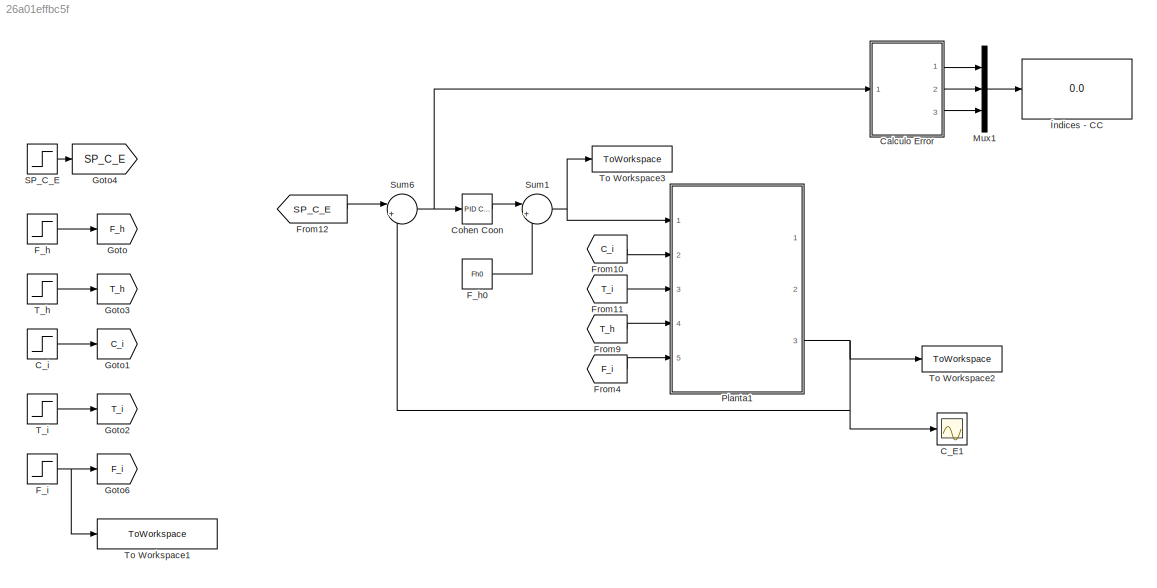
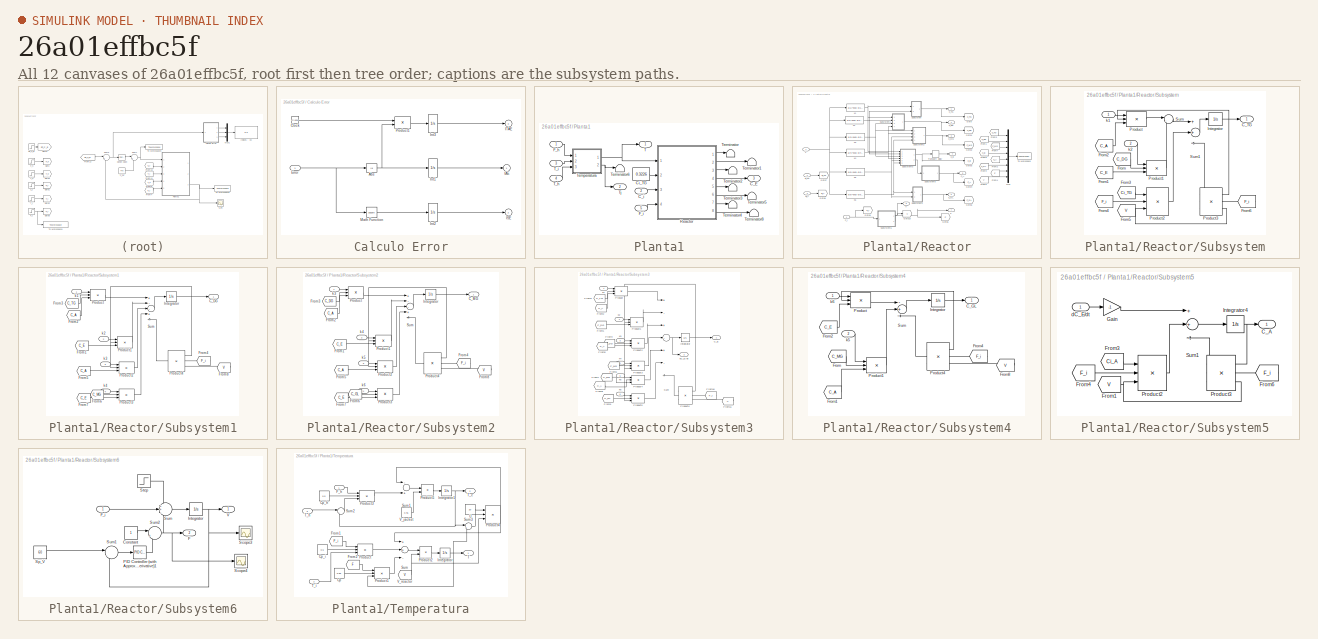
[diagram: thumbnail index - all 12 canvases of the model, root first then tree order]
MODEL slx_26a01effbc5f
KIND model
BLOCK [Scope] C_E1
  Floating = off
  NumInputPorts = 1
  Ports = [1]
  SaveName = ScopeData2
  ShowLegends = off
  ZoomMode = xonly
BLOCK [Step] C_i
  After = Ci0
  Before = Ci0
  SampleTime = 1
  Time = 50
BLOCK [SubSystem] Calculo Error
  Ports = [1, 3]
  RequestExecContextInheritance = off
BLOCK [Abs] Calculo Error/Abs
  ZeroCross = off
BLOCK [Clock] Calculo Error/Clock
BLOCK [Inport] Calculo Error/Error
  IconDisplay = Port number
BLOCK [Outport] Calculo Error/IAE
  IconDisplay = Port number
  InitialOutput = 0
BLOCK [Outport] Calculo Error/ISE
  IconDisplay = Port number
  InitialOutput = 0
  Port = 2
BLOCK [Outport] Calculo Error/ITAE
  IconDisplay = Port number
  InitialOutput = 0
  Port = 3
BLOCK [Integrator] Calculo Error/Int1
  Ports = [1, 1]
BLOCK [Integrator] Calculo Error/Int2
  Ports = [1, 1]
BLOCK [Integrator] Calculo Error/Int3
  Ports = [1, 1]
BLOCK [Math] Calculo Error/Math Function
  Operator = square
  Ports = [1, 1]
BLOCK [Product] Calculo Error/Product1
  Ports = [2, 1]
  RndMeth = Floor
BLOCK [Reference] Cohen Coon  REF=simulink_need_slupdate/PID Controller
  D = Td_CC
  I = Ti_CC
  P = Kc_CC
  Ports = [1, 1]
  SourceBlock = simulink_need_slupdate/PID Controller
  SourceType = PID Controller
BLOCK [Step] F_h
  After = Fh0
  Before = Fh0
  SampleTime = 1
  Time = 50
BLOCK [Constant] F_h0
  Value = Fh0
BLOCK [Step] F_i
  After = Fi0*1.01
  Before = Fi0
  SampleTime = 1
  Time = 50
BLOCK [From] From10
  GotoTag = C_i
BLOCK [From] From11
  GotoTag = T_i
BLOCK [From] From12
  GotoTag = SP_C_E
BLOCK [From] From4
  GotoTag = F_i
BLOCK [From] From9
  GotoTag = T_h
BLOCK [Goto] Goto
  GotoTag = F_h
BLOCK [Goto] Goto1
  GotoTag = C_i
BLOCK [Goto] Goto2
  GotoTag = T_i
BLOCK [Goto] Goto3
  GotoTag = T_h
BLOCK [Goto] Goto4
  GotoTag = SP_C_E
BLOCK [Goto] Goto6
  GotoTag = F_i
BLOCK [Mux] Mux1
  Inputs = 3
  Ports = [3, 1]
BLOCK [SubSystem] Planta1
  Ports = [5, 3]
  RequestExecContextInheritance = off
BLOCK [Outport] Planta1/C_E
  IconDisplay = Port number
  Port = 3
BLOCK [Inport] Planta1/C_i
  IconDisplay = Port number
  Port = 2
BLOCK [Constant] Planta1/Ci_TG
  Value = 0.3226
BLOCK [Inport] Planta1/F_h
  IconDisplay = Port number
BLOCK [Inport] Planta1/F_i
  IconDisplay = Port number
  Port = 5
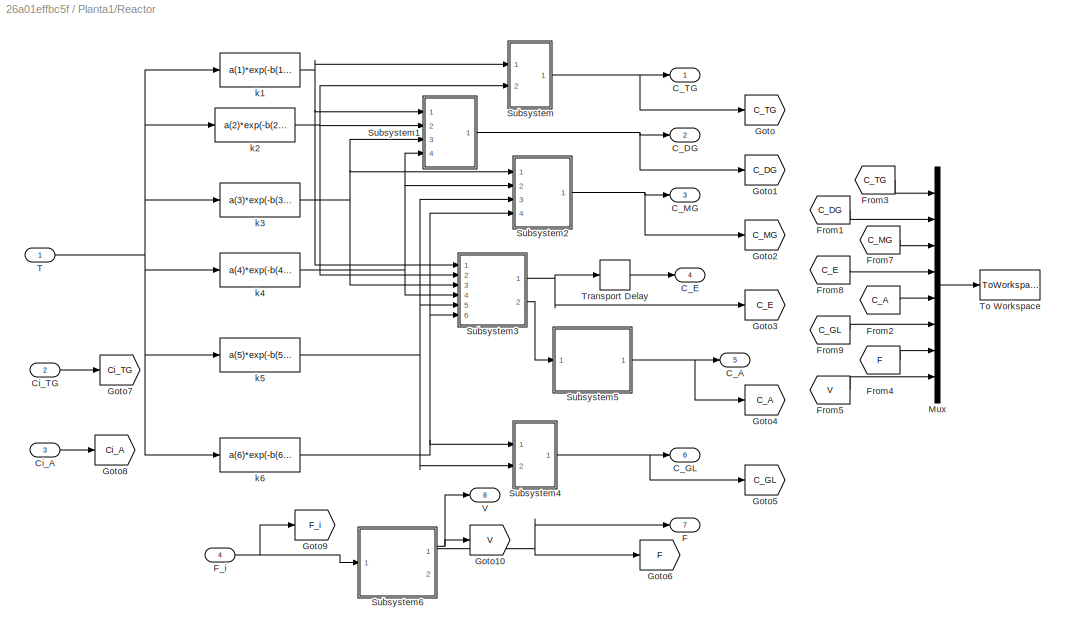
BLOCK [SubSystem] Planta1/Reactor
  Ports = [4, 8]
  RequestExecContextInheritance = off
BLOCK [Outport] Planta1/Reactor/C_A
  IconDisplay = Port number
  Port = 5
BLOCK [Outport] Planta1/Reactor/C_DG
  IconDisplay = Port number
  Port = 2
BLOCK [Outport] Planta1/Reactor/C_E
  IconDisplay = Port number
  Port = 4
BLOCK [Outport] Planta1/Reactor/C_GL
  IconDisplay = Port number
  Port = 6
BLOCK [Outport] Planta1/Reactor/C_MG
  IconDisplay = Port number
  Port = 3
BLOCK [Outport] Planta1/Reactor/C_TG
  IconDisplay = Port number
BLOCK [Inport] Planta1/Reactor/Ci_A
  IconDisplay = Port number
  Port = 3
BLOCK [Inport] Planta1/Reactor/Ci_TG
  IconDisplay = Port number
  Port = 2
BLOCK [Outport] Planta1/Reactor/F
  IconDisplay = Port number
  Port = 7
BLOCK [Inport] Planta1/Reactor/F_i
  IconDisplay = Port number
  Port = 4
BLOCK [From] Planta1/Reactor/From1
  CloseFcn = tagdialog Close
  GotoTag = C_DG
  TagVisibility = global
BLOCK [From] Planta1/Reactor/From2
  CloseFcn = tagdialog Close
  GotoTag = C_A
  TagVisibility = global
BLOCK [From] Planta1/Reactor/From3
  CloseFcn = tagdialog Close
  GotoTag = C_TG
  TagVisibility = global
BLOCK [From] Planta1/Reactor/From4
  CloseFcn = tagdialog Close
  GotoTag = F
  TagVisibility = global
BLOCK [From] Planta1/Reactor/From5
  CloseFcn = tagdialog Close
  GotoTag = V
  TagVisibility = global
BLOCK [From] Planta1/Reactor/From7
  CloseFcn = tagdialog Close
  GotoTag = C_MG
  TagVisibility = global
BLOCK [From] Planta1/Reactor/From8
  CloseFcn = tagdialog Close
  GotoTag = C_E
  TagVisibility = global
BLOCK [From] Planta1/Reactor/From9
  CloseFcn = tagdialog Close
  GotoTag = C_GL
  TagVisibility = global
BLOCK [Goto] Planta1/Reactor/Goto
  GotoTag = C_TG
  TagVisibility = global
BLOCK [Goto] Planta1/Reactor/Goto1
  GotoTag = C_DG
  TagVisibility = global
BLOCK [Goto] Planta1/Reactor/Goto10
  GotoTag = V
  TagVisibility = global
BLOCK [Goto] Planta1/Reactor/Goto2
  GotoTag = C_MG
  TagVisibility = global
BLOCK [Goto] Planta1/Reactor/Goto3
  GotoTag = C_E
  TagVisibility = global
BLOCK [Goto] Planta1/Reactor/Goto4
  GotoTag = C_A
  TagVisibility = global
BLOCK [Goto] Planta1/Reactor/Goto5
  GotoTag = C_GL
  TagVisibility = global
BLOCK [Goto] Planta1/Reactor/Goto6
  GotoTag = F
  TagVisibility = global
BLOCK [Goto] Planta1/Reactor/Goto7
  GotoTag = Ci_TG
  TagVisibility = global
BLOCK [Goto] Planta1/Reactor/Goto8
  GotoTag = Ci_A
  TagVisibility = global
BLOCK [Goto] Planta1/Reactor/Goto9
  GotoTag = F_i
  TagVisibility = global
BLOCK [Mux] Planta1/Reactor/Mux
  DisplayOption = bar
  Inputs = 8
  Ports = [8, 1]
BLOCK [SubSystem] Planta1/Reactor/Subsystem
  Ports = [2, 1]
  RequestExecContextInheritance = off
BLOCK [Outport] Planta1/Reactor/Subsystem/C_TG
  IconDisplay = Port number
BLOCK [From] Planta1/Reactor/Subsystem/From
  CloseFcn = tagdialog Close
  GotoTag = C_DG
  TagVisibility = global
BLOCK [From] Planta1/Reactor/Subsystem/From1
  CloseFcn = tagdialog Close
  GotoTag = C_E
  TagVisibility = global
BLOCK [From] Planta1/Reactor/Subsystem/From2
  CloseFcn = tagdialog Close
  GotoTag = C_A
  TagVisibility = global
BLOCK [From] Planta1/Reactor/Subsystem/From3
  CloseFcn = tagdialog Close
  GotoTag = Ci_TG
  TagVisibility = global
BLOCK [From] Planta1/Reactor/Subsystem/From4
  CloseFcn = tagdialog Close
  GotoTag = F_i
  TagVisibility = global
BLOCK [From] Planta1/Reactor/Subsystem/From5
  CloseFcn = tagdialog Close
  GotoTag = V
  TagVisibility = global
BLOCK [From] Planta1/Reactor/Subsystem/From6
  CloseFcn = tagdialog Close
  GotoTag = F_i
  TagVisibility = global
BLOCK [Integrator] Planta1/Reactor/Subsystem/Integrator
  InitialCondition = C0(1)
  Ports = [1, 1]
BLOCK [Product] Planta1/Reactor/Subsystem/Product
  Inputs = 3
  Ports = [3, 1]
BLOCK [Product] Planta1/Reactor/Subsystem/Product1
  Inputs = 3
  Ports = [3, 1]
BLOCK [Product] Planta1/Reactor/Subsystem/Product2
  Inputs = **/
  Ports = [3, 1]
BLOCK [Product] Planta1/Reactor/Subsystem/Product3
  Inputs = **/
  Ports = [3, 1]
BLOCK [Sum] Planta1/Reactor/Subsystem/Sum
  IconShape = round
  Inputs = |-+
  Ports = [2, 1]
BLOCK [Sum] Planta1/Reactor/Subsystem/Sum1
  Inputs = ++-
  Ports = [3, 1]
BLOCK [Inport] Planta1/Reactor/Subsystem/k1
  IconDisplay = Port number
BLOCK [Inport] Planta1/Reactor/Subsystem/k2
  IconDisplay = Port number
  Port = 2
BLOCK [SubSystem] Planta1/Reactor/Subsystem1
  Ports = [4, 1]
  RequestExecContextInheritance = off
BLOCK [Outport] Planta1/Reactor/Subsystem1/C_DG
  IconDisplay = Port number
BLOCK [From] Planta1/Reactor/Subsystem1/From1
  CloseFcn = tagdialog Close
  GotoTag = C_E
  TagVisibility = global
BLOCK [From] Planta1/Reactor/Subsystem1/From2
  CloseFcn = tagdialog Close
  GotoTag = C_A
  TagVisibility = global
BLOCK [From] Planta1/Reactor/Subsystem1/From3
  CloseFcn = tagdialog Close
  GotoTag = C_TG
  TagVisibility = global
BLOCK [From] Planta1/Reactor/Subsystem1/From4
  CloseFcn = tagdialog Close
  GotoTag = F_i
  TagVisibility = global
BLOCK [From] Planta1/Reactor/Subsystem1/From5
  CloseFcn = tagdialog Close
  GotoTag = C_A
  TagVisibility = global
BLOCK [From] Planta1/Reactor/Subsystem1/From6
  CloseFcn = tagdialog Close
  GotoTag = C_MG
  TagVisibility = global
BLOCK [From] Planta1/Reactor/Subsystem1/From7
  CloseFcn = tagdialog Close
  GotoTag = C_E
  TagVisibility = global
BLOCK [From] Planta1/Reactor/Subsystem1/From8
  CloseFcn = tagdialog Close
  GotoTag = V
  TagVisibility = global
BLOCK [Integrator] Planta1/Reactor/Subsystem1/Integrator
  InitialCondition = C0(2)
  Ports = [1, 1]
BLOCK [Product] Planta1/Reactor/Subsystem1/Product
  Inputs = 3
  Ports = [3, 1]
BLOCK [Product] Planta1/Reactor/Subsystem1/Product1
  Inputs = 3
  Ports = [3, 1]
BLOCK [Product] Planta1/Reactor/Subsystem1/Product2
  Inputs = 3
  Ports = [3, 1]
BLOCK [Product] Planta1/Reactor/Subsystem1/Product3
  Inputs = 3
  Ports = [3, 1]
BLOCK [Product] Planta1/Reactor/Subsystem1/Product4
  Inputs = **/
  Ports = [3, 1]
BLOCK [Sum] Planta1/Reactor/Subsystem1/Sum
  Inputs = +--+-
  Ports = [5, 1]
BLOCK [Inport] Planta1/Reactor/Subsystem1/k1
  IconDisplay = Port number
BLOCK [Inport] Planta1/Reactor/Subsystem1/k2
  IconDisplay = Port number
  Port = 2
BLOCK [Inport] Planta1/Reactor/Subsystem1/k3
  IconDisplay = Port number
  Port = 3
BLOCK [Inport] Planta1/Reactor/Subsystem1/k4
  IconDisplay = Port number
  Port = 4
BLOCK [SubSystem] Planta1/Reactor/Subsystem2
  Ports = [4, 1]
  RequestExecContextInheritance = off
BLOCK [Outport] Planta1/Reactor/Subsystem2/C_MG
  IconDisplay = Port number
BLOCK [From] Planta1/Reactor/Subsystem2/From1
  CloseFcn = tagdialog Close
  GotoTag = C_E
  TagVisibility = global
BLOCK [From] Planta1/Reactor/Subsystem2/From2
  CloseFcn = tagdialog Close
  GotoTag = C_A
  TagVisibility = global
BLOCK [From] Planta1/Reactor/Subsystem2/From3
  CloseFcn = tagdialog Close
  GotoTag = C_DG
  TagVisibility = global
BLOCK [From] Planta1/Reactor/Subsystem2/From4
  CloseFcn = tagdialog Close
  GotoTag = F_i
  TagVisibility = global
BLOCK [From] Planta1/Reactor/Subsystem2/From5
  CloseFcn = tagdialog Close
  GotoTag = C_A
  TagVisibility = global
BLOCK [From] Planta1/Reactor/Subsystem2/From6
  CloseFcn = tagdialog Close
  GotoTag = C_GL
  TagVisibility = global
BLOCK [From] Planta1/Reactor/Subsystem2/From7
  CloseFcn = tagdialog Close
  GotoTag = C_E
  TagVisibility = global
BLOCK [From] Planta1/Reactor/Subsystem2/From8
  CloseFcn = tagdialog Close
  GotoTag = V
  TagVisibility = global
BLOCK [Integrator] Planta1/Reactor/Subsystem2/Integrator
  InitialCondition = C0(3)
  Ports = [1, 1]
BLOCK [Product] Planta1/Reactor/Subsystem2/Product
  Inputs = 3
  Ports = [3, 1]
BLOCK [Product] Planta1/Reactor/Subsystem2/Product1
  Inputs = 3
  Ports = [3, 1]
BLOCK [Product] Planta1/Reactor/Subsystem2/Product2
  Inputs = 3
  Ports = [3, 1]
BLOCK [Product] Planta1/Reactor/Subsystem2/Product3
  Inputs = 3
  Ports = [3, 1]
BLOCK [Product] Planta1/Reactor/Subsystem2/Product4
  Inputs = **/
  Ports = [3, 1]
BLOCK [Sum] Planta1/Reactor/Subsystem2/Sum
  Inputs = +--+-
  Ports = [5, 1]
BLOCK [Inport] Planta1/Reactor/Subsystem2/k3
  IconDisplay = Port number
BLOCK [Inport] Planta1/Reactor/Subsystem2/k4
  IconDisplay = Port number
  Port = 2
BLOCK [Inport] Planta1/Reactor/Subsystem2/k5
  IconDisplay = Port number
  Port = 3
BLOCK [Inport] Planta1/Reactor/Subsystem2/k6
  IconDisplay = Port number
  Port = 4
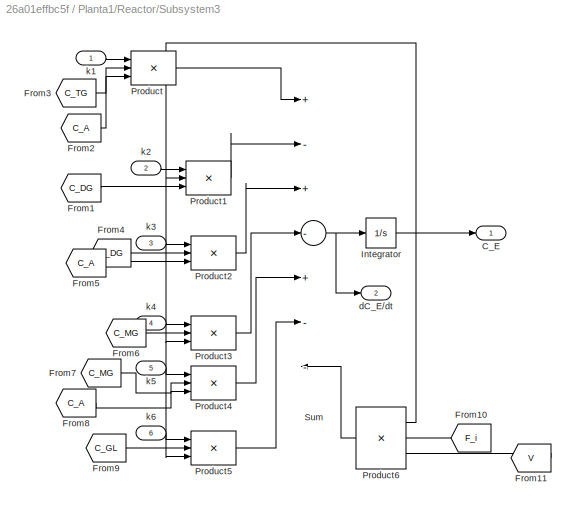
BLOCK [SubSystem] Planta1/Reactor/Subsystem3
  Ports = [6, 2]
  RequestExecContextInheritance = off
BLOCK [Outport] Planta1/Reactor/Subsystem3/C_E
  IconDisplay = Port number
BLOCK [From] Planta1/Reactor/Subsystem3/From1
  CloseFcn = tagdialog Close
  GotoTag = C_DG
  TagVisibility = global
BLOCK [From] Planta1/Reactor/Subsystem3/From10
  CloseFcn = tagdialog Close
  GotoTag = F_i
  TagVisibility = global
BLOCK [From] Planta1/Reactor/Subsystem3/From11
  CloseFcn = tagdialog Close
  GotoTag = V
  TagVisibility = global
BLOCK [From] Planta1/Reactor/Subsystem3/From2
  CloseFcn = tagdialog Close
  GotoTag = C_A
  TagVisibility = global
BLOCK [From] Planta1/Reactor/Subsystem3/From3
  CloseFcn = tagdialog Close
  GotoTag = C_TG
  TagVisibility = global
BLOCK [From] Planta1/Reactor/Subsystem3/From4
  CloseFcn = tagdialog Close
  GotoTag = C_DG
  TagVisibility = global
BLOCK [From] Planta1/Reactor/Subsystem3/From5
  CloseFcn = tagdialog Close
  GotoTag = C_A
  TagVisibility = global
BLOCK [From] Planta1/Reactor/Subsystem3/From6
  CloseFcn = tagdialog Close
  GotoTag = C_MG
  TagVisibility = global
BLOCK [From] Planta1/Reactor/Subsystem3/From7
  CloseFcn = tagdialog Close
  GotoTag = C_MG
  TagVisibility = global
BLOCK [From] Planta1/Reactor/Subsystem3/From8
  CloseFcn = tagdialog Close
  GotoTag = C_A
  TagVisibility = global
BLOCK [From] Planta1/Reactor/Subsystem3/From9
  CloseFcn = tagdialog Close
  GotoTag = C_GL
  TagVisibility = global
BLOCK [Integrator] Planta1/Reactor/Subsystem3/Integrator
  InitialCondition = C0(4)
  Ports = [1, 1]
BLOCK [Product] Planta1/Reactor/Subsystem3/Product
  Inputs = 3
  Ports = [3, 1]
BLOCK [Product] Planta1/Reactor/Subsystem3/Product1
  Inputs = 3
  Ports = [3, 1]
BLOCK [Product] Planta1/Reactor/Subsystem3/Product2
  Inputs = 3
  Ports = [3, 1]
BLOCK [Product] Planta1/Reactor/Subsystem3/Product3
  Inputs = 3
  Ports = [3, 1]
BLOCK [Product] Planta1/Reactor/Subsystem3/Product4
  Inputs = 3
  Ports = [3, 1]
BLOCK [Product] Planta1/Reactor/Subsystem3/Product5
  Inputs = 3
  Ports = [3, 1]
BLOCK [Product] Planta1/Reactor/Subsystem3/Product6
  Inputs = **/
  Ports = [3, 1]
BLOCK [Sum] Planta1/Reactor/Subsystem3/Sum
  Inputs = +-+-+--
  Ports = [7, 1]
BLOCK [Outport] Planta1/Reactor/Subsystem3/dC_E//dt
  IconDisplay = Port number
  Port = 2
BLOCK [Inport] Planta1/Reactor/Subsystem3/k1
  IconDisplay = Port number
BLOCK [Inport] Planta1/Reactor/Subsystem3/k2
  IconDisplay = Port number
  Port = 2
BLOCK [Inport] Planta1/Reactor/Subsystem3/k3
  IconDisplay = Port number
  Port = 3
BLOCK [Inport] Planta1/Reactor/Subsystem3/k4
  IconDisplay = Port number
  Port = 4
BLOCK [Inport] Planta1/Reactor/Subsystem3/k5
  IconDisplay = Port number
  Port = 5
BLOCK [Inport] Planta1/Reactor/Subsystem3/k6
  IconDisplay = Port number
  Port = 6
BLOCK [SubSystem] Planta1/Reactor/Subsystem4
  Ports = [2, 1]
  RequestExecContextInheritance = off
BLOCK [Outport] Planta1/Reactor/Subsystem4/C_GL
  IconDisplay = Port number
BLOCK [From] Planta1/Reactor/Subsystem4/From
  CloseFcn = tagdialog Close
  GotoTag = C_MG
  TagVisibility = global
BLOCK [From] Planta1/Reactor/Subsystem4/From1
  CloseFcn = tagdialog Close
  GotoTag = C_A
  TagVisibility = global
BLOCK [From] Planta1/Reactor/Subsystem4/From2
  CloseFcn = tagdialog Close
  GotoTag = C_E
  TagVisibility = global
BLOCK [From] Planta1/Reactor/Subsystem4/From4
  CloseFcn = tagdialog Close
  GotoTag = F_i
  TagVisibility = global
BLOCK [From] Planta1/Reactor/Subsystem4/From8
  CloseFcn = tagdialog Close
  GotoTag = V
  TagVisibility = global
BLOCK [Integrator] Planta1/Reactor/Subsystem4/Integrator
  InitialCondition = C0(6)
  Ports = [1, 1]
BLOCK [Product] Planta1/Reactor/Subsystem4/Product
  Inputs = 3
  Ports = [3, 1]
BLOCK [Product] Planta1/Reactor/Subsystem4/Product1
  Inputs = 3
  Ports = [3, 1]
BLOCK [Product] Planta1/Reactor/Subsystem4/Product4
  Inputs = **/
  Ports = [3, 1]
BLOCK [Sum] Planta1/Reactor/Subsystem4/Sum
  Inputs = -+-
  Ports = [3, 1]
BLOCK [Inport] Planta1/Reactor/Subsystem4/k5
  IconDisplay = Port number
  Port = 2
BLOCK [Inport] Planta1/Reactor/Subsystem4/k6
  IconDisplay = Port number
BLOCK [SubSystem] Planta1/Reactor/Subsystem5
  Ports = [1, 1]
  RequestExecContextInheritance = off
BLOCK [Outport] Planta1/Reactor/Subsystem5/C_A
  IconDisplay = Port number
BLOCK [From] Planta1/Reactor/Subsystem5/From1
  CloseFcn = tagdialog Close
  GotoTag = V
  TagVisibility = global
BLOCK [From] Planta1/Reactor/Subsystem5/From3
  CloseFcn = tagdialog Close
  GotoTag = Ci_A
  TagVisibility = global
BLOCK [From] Planta1/Reactor/Subsystem5/From4
  CloseFcn = tagdialog Close
  GotoTag = F_i
  TagVisibility = global
BLOCK [From] Planta1/Reactor/Subsystem5/From6
  CloseFcn = tagdialog Close
  GotoTag = F_i
  TagVisibility = global
BLOCK [Gain] Planta1/Reactor/Subsystem5/Gain
  Gain = -1
BLOCK [Integrator] Planta1/Reactor/Subsystem5/Integrator4
  InitialCondition = C0(5)
  Ports = [1, 1]
BLOCK [Product] Planta1/Reactor/Subsystem5/Product2
  Inputs = **/
  Ports = [3, 1]
BLOCK [Product] Planta1/Reactor/Subsystem5/Product3
  Inputs = **/
  Ports = [3, 1]
BLOCK [Sum] Planta1/Reactor/Subsystem5/Sum1
  Inputs = ++-
  Ports = [3, 1]
BLOCK [Inport] Planta1/Reactor/Subsystem5/dC_E//dt
  IconDisplay = Port number
BLOCK [SubSystem] Planta1/Reactor/Subsystem6
  Ports = [1, 2]
  RequestExecContextInheritance = off
BLOCK [Constant] Planta1/Reactor/Subsystem6/Constant
BLOCK [Outport] Planta1/Reactor/Subsystem6/F
  IconDisplay = Port number
  Port = 2
BLOCK [Inport] Planta1/Reactor/Subsystem6/F_i
  IconDisplay = Port number
BLOCK [Integrator] Planta1/Reactor/Subsystem6/Integrator
  InitialCondition = 60
  Ports = [1, 1]
BLOCK [Reference] Planta1/Reactor/Subsystem6/PID Controller (with Approximate Derivative)1  REF=simulink_need_slupdate/PID Controller
(with Approximate
Derivative)
  D = 0
  I = 1
  N = 100
  P = 1
  Ports = [1, 1]
  SourceBlock = simulink_need_slupdate/PID Controller\n(with Approximate\nDerivative)
  SourceType = PID(2) Controller
BLOCK [Scope] Planta1/Reactor/Subsystem6/Scope3
  Floating = off
  NumInputPorts = 1
  Ports = [1]
  ShowLegends = off
BLOCK [Scope] Planta1/Reactor/Subsystem6/Scope4
  Floating = off
  NumInputPorts = 1
  Ports = [1]
  ShowLegends = off
BLOCK [Constant] Planta1/Reactor/Subsystem6/Sp_V
  Value = 60
BLOCK [Step] Planta1/Reactor/Subsystem6/Step
  After = 0
  SampleTime = 0
  Time = 50
BLOCK [Sum] Planta1/Reactor/Subsystem6/Sum
  IconShape = round
  Inputs = ++-
  Ports = [3, 1]
BLOCK [Sum] Planta1/Reactor/Subsystem6/Sum1
  IconShape = round
  Inputs = |-+
  Ports = [2, 1]
BLOCK [Sum] Planta1/Reactor/Subsystem6/Sum2
  IconShape = round
  Inputs = |++
  Ports = [2, 1]
BLOCK [Outport] Planta1/Reactor/Subsystem6/V
  IconDisplay = Port number
BLOCK [Inport] Planta1/Reactor/T
  IconDisplay = Port number
BLOCK [ToWorkspace] Planta1/Reactor/To Workspace
  MaxDataPoints = inf
  Ports = [1]
  SampleTime = -1
  VariableName = C
BLOCK [TransportDelay] Planta1/Reactor/Transport Delay
  DelayTime = 10
  InitialOutput = C0(4)
  Ports = [1, 1]
BLOCK [Outport] Planta1/Reactor/V
  IconDisplay = Port number
  Port = 8
BLOCK [Fcn] Planta1/Reactor/k1
  Expr = a(1)*exp(-b(1)/u)
BLOCK [Fcn] Planta1/Reactor/k2
  Expr = a(2)*exp(-b(2)/u)
BLOCK [Fcn] Planta1/Reactor/k3
  Expr = a(3)*exp(-b(3)/u)
BLOCK [Fcn] Planta1/Reactor/k4
  Expr = a(4)*exp(-b(4)/u)
BLOCK [Fcn] Planta1/Reactor/k5
  Expr = a(5)*exp(-b(5)/u)
BLOCK [Fcn] Planta1/Reactor/k6
  Expr = a(6)*exp(-b(6)/u)
BLOCK [Outport] Planta1/T
  IconDisplay = Port number
BLOCK [Inport] Planta1/T_h
  IconDisplay = Port number
  Port = 4
BLOCK [Inport] Planta1/T_i
  IconDisplay = Port number
  Port = 3
BLOCK [SubSystem] Planta1/Temperatura
  Ports = [3, 2]
  RequestExecContextInheritance = off
BLOCK [Constant] Planta1/Temperatura/Cp
  Value = 0.55
BLOCK [Constant] Planta1/Temperatura/Cp_h
  Value = 0.5
BLOCK [Constant] Planta1/Temperatura/Cp_i
  Value = 0.5
BLOCK [Inport] Planta1/Temperatura/F_h
  IconDisplay = Port number
BLOCK [From] Planta1/Temperatura/From1
  CloseFcn = tagdialog Close
  GotoTag = F_i
  TagVisibility = global
BLOCK [From] Planta1/Temperatura/From2
  CloseFcn = tagdialog Close
  GotoTag = F
  TagVisibility = global
BLOCK [Integrator] Planta1/Temperatura/Integrator
  InitialCondition = 323
  Ports = [1, 1]
BLOCK [Integrator] Planta1/Temperatura/Integrator1
  InitialCondition = 408.95
  Ports = [1, 1]
BLOCK [Product] Planta1/Temperatura/Product
  Inputs = 3
  Ports = [3, 1]
BLOCK [Product] Planta1/Temperatura/Product1
  Inputs = 3
  Ports = [3, 1]
BLOCK [Product] Planta1/Temperatura/Product2
  Inputs = */
  Ports = [2, 1]
BLOCK [Product] Planta1/Temperatura/Product3
  Inputs = 3
  Ports = [3, 1]
BLOCK [Product] Planta1/Temperatura/Product4
  Inputs = **/
  Ports = [3, 1]
BLOCK [Product] Planta1/Temperatura/Product5
  Inputs = */
  Ports = [2, 1]
BLOCK [Sum] Planta1/Temperatura/Sum
  Inputs = ++-
  Ports = [3, 1]
BLOCK [Sum] Planta1/Temperatura/Sum1
  Inputs = -+
  Ports = [2, 1]
BLOCK [Sum] Planta1/Temperatura/Sum2
  IconShape = round
  Inputs = |+-
  Ports = [2, 1]
BLOCK [Sum] Planta1/Temperatura/Sum3
  IconShape = round
  Inputs = |+-
  Ports = [2, 1]
BLOCK [Outport] Planta1/Temperatura/T
  IconDisplay = Port number
BLOCK [Outport] Planta1/Temperatura/T_c
  IconDisplay = Port number
  Port = 2
BLOCK [Inport] Planta1/Temperatura/T_h
  IconDisplay = Port number
  Port = 3
BLOCK [Inport] Planta1/Temperatura/T_i
  IconDisplay = Port number
  Port = 2
BLOCK [Constant] Planta1/Temperatura/U
  Value = 20
BLOCK [Constant] Planta1/Temperatura/V_jacket
  Value = 0.45
BLOCK [From] Planta1/Temperatura/V_reactor
  CloseFcn = tagdialog Close
  GotoTag = V
  TagVisibility = global
BLOCK [Terminator] Planta1/Terminator
BLOCK [Terminator] Planta1/Terminator1
BLOCK [Terminator] Planta1/Terminator2
BLOCK [Terminator] Planta1/Terminator3
BLOCK [Terminator] Planta1/Terminator4
BLOCK [Terminator] Planta1/Terminator5
BLOCK [Terminator] Planta1/Terminator6
BLOCK [Terminator] Planta1/Terminator8
BLOCK [Outport] Planta1/Tj
  IconDisplay = Port number
  Port = 2
BLOCK [Step] SP_C_E
  After = Ce0
  Before = Ce0
  SampleTime = 0
  Time = 50
BLOCK [Sum] Sum1
  IconShape = round
  InputSameDT = off
  Inputs = |++
  OutDataTypeStr = Inherit: Inherit via internal rule
  Ports = [2, 1]
  SaturateOnIntegerOverflow = off
BLOCK [Sum] Sum6
  IconShape = round
  InputSameDT = off
  Inputs = |+-
  OutDataTypeStr = Inherit: Inherit via internal rule
  Ports = [2, 1]
  SaturateOnIntegerOverflow = off
BLOCK [Step] T_h
  After = Th0
  Before = Th0
  SampleTime = 1
  Time = 50
BLOCK [Step] T_i
  After = Ti0
  Before = Ti0
  SampleTime = 1
  Time = 50
BLOCK [ToWorkspace] To Workspace1
  MaxDataPoints = inf
  Ports = [1]
  SaveFormat = Structure With Time
  VariableName = F_i_vector
BLOCK [ToWorkspace] To Workspace2
  MaxDataPoints = inf
  Ports = [1]
  SaveFormat = Structure With Time
  VariableName = C_E_sin_FF
BLOCK [ToWorkspace] To Workspace3
  MaxDataPoints = inf
  Ports = [1]
  SaveFormat = Structure With Time
  VariableName = F_h_sin_FF
BLOCK [Display] Índices - CC
  Decimation = 1
  Ports = [1]
  SampleTime = 1
LINE C_i:1 -> Goto1:1
NET Calculo Error/Abs:1 -> Calculo Error/Int1:1, Calculo Error/Product1:2
LINE Calculo Error/Clock:1 -> Calculo Error/Product1:1
NET Calculo Error/Error:1 -> Calculo Error/Abs:1, Calculo Error/Math Function:1
LINE Calculo Error/Int1:1 -> Calculo Error/IAE:1
LINE Calculo Error/Int2:1 -> Calculo Error/ISE:1
LINE Calculo Error/Int3:1 -> Calculo Error/ITAE:1
LINE Calculo Error/Math Function:1 -> Calculo Error/Int2:1
LINE Calculo Error/Product1:1 -> Calculo Error/Int3:1
LINE Calculo Error:1 -> Mux1:1
LINE Calculo Error:2 -> Mux1:2
LINE Calculo Error:3 -> Mux1:3
LINE Cohen Coon:1 -> Sum1:1
LINE F_h0:1 -> Sum1:2
LINE F_h:1 -> Goto:1
NET F_i:1 -> Goto6:1, To Workspace1:1
LINE From10:1 -> Planta1:2
LINE From11:1 -> Planta1:3
LINE From12:1 -> Sum6:1
LINE From4:1 -> Planta1:5
LINE From9:1 -> Planta1:4
LINE Mux1:1 -> Índices - CC:1
LINE Planta1/C_i:1 -> Planta1/Reactor:3
LINE Planta1/Ci_TG:1 -> Planta1/Reactor:2
LINE Planta1/F_h:1 -> Planta1/Temperatura:1
LINE Planta1/F_i:1 -> Planta1/Reactor:4
LINE Planta1/Reactor/Ci_A:1 -> Planta1/Reactor/Goto8:1
LINE Planta1/Reactor/Ci_TG:1 -> Planta1/Reactor/Goto7:1
NET Planta1/Reactor/F_i:1 -> Planta1/Reactor/Goto9:1, Planta1/Reactor/Subsystem6:1
LINE Planta1/Reactor/From1:1 -> Planta1/Reactor/Mux:2
LINE Planta1/Reactor/From2:1 -> Planta1/Reactor/Mux:5
LINE Planta1/Reactor/From3:1 -> Planta1/Reactor/Mux:1
LINE Planta1/Reactor/From4:1 -> Planta1/Reactor/Mux:7
LINE Planta1/Reactor/From5:1 -> Planta1/Reactor/Mux:8
LINE Planta1/Reactor/From7:1 -> Planta1/Reactor/Mux:3
LINE Planta1/Reactor/From8:1 -> Planta1/Reactor/Mux:4
LINE Planta1/Reactor/From9:1 -> Planta1/Reactor/Mux:6
LINE Planta1/Reactor/Mux:1 -> Planta1/Reactor/To Workspace:1
LINE Planta1/Reactor/Subsystem/From1:1 -> Planta1/Reactor/Subsystem/Product1:3
LINE Planta1/Reactor/Subsystem/From2:1 -> Planta1/Reactor/Subsystem/Product:3
LINE Planta1/Reactor/Subsystem/From3:1 -> Planta1/Reactor/Subsystem/Product2:1
LINE Planta1/Reactor/Subsystem/From4:1 -> Planta1/Reactor/Subsystem/Product2:2
NET Planta1/Reactor/Subsystem/From5:1 -> Planta1/Reactor/Subsystem/Product2:3, Planta1/Reactor/Subsystem/Product3:3
LINE Planta1/Reactor/Subsystem/From6:1 -> Planta1/Reactor/Subsystem/Product3:2
LINE Planta1/Reactor/Subsystem/From:1 -> Planta1/Reactor/Subsystem/Product1:2
NET Planta1/Reactor/Subsystem/Integrator:1 -> Planta1/Reactor/Subsystem/C_TG:1, Planta1/Reactor/Subsystem/Product3:1, Planta1/Reactor/Subsystem/Product:2
LINE Planta1/Reactor/Subsystem/Product1:1 -> Planta1/Reactor/Subsystem/Sum:2
LINE Planta1/Reactor/Subsystem/Product2:1 -> Planta1/Reactor/Subsystem/Sum1:2
LINE Planta1/Reactor/Subsystem/Product3:1 -> Planta1/Reactor/Subsystem/Sum1:3
LINE Planta1/Reactor/Subsystem/Product:1 -> Planta1/Reactor/Subsystem/Sum:1
LINE Planta1/Reactor/Subsystem/Sum1:1 -> Planta1/Reactor/Subsystem/Integrator:1
LINE Planta1/Reactor/Subsystem/Sum:1 -> Planta1/Reactor/Subsystem/Sum1:1
LINE Planta1/Reactor/Subsystem/k1:1 -> Planta1/Reactor/Subsystem/Product:1
LINE Planta1/Reactor/Subsystem/k2:1 -> Planta1/Reactor/Subsystem/Product1:1
LINE Planta1/Reactor/Subsystem1/From1:1 -> Planta1/Reactor/Subsystem1/Product1:3
LINE Planta1/Reactor/Subsystem1/From2:1 -> Planta1/Reactor/Subsystem1/Product:3
LINE Planta1/Reactor/Subsystem1/From3:1 -> Planta1/Reactor/Subsystem1/Product:2
LINE Planta1/Reactor/Subsystem1/From4:1 -> Planta1/Reactor/Subsystem1/Product4:2
LINE Planta1/Reactor/Subsystem1/From5:1 -> Planta1/Reactor/Subsystem1/Product2:3
LINE Planta1/Reactor/Subsystem1/From6:1 -> Planta1/Reactor/Subsystem1/Product3:2
LINE Planta1/Reactor/Subsystem1/From7:1 -> Planta1/Reactor/Subsystem1/Product3:3
LINE Planta1/Reactor/Subsystem1/From8:1 -> Planta1/Reactor/Subsystem1/Product4:3
NET Planta1/Reactor/Subsystem1/Integrator:1 -> Planta1/Reactor/Subsystem1/C_DG:1, Planta1/Reactor/Subsystem1/Product1:2, Planta1/Reactor/Subsystem1/Product2:2, Planta1/Reactor/Subsystem1/Product4:1
LINE Planta1/Reactor/Subsystem1/Product1:1 -> Planta1/Reactor/Subsystem1/Sum:2
LINE Planta1/Reactor/Subsystem1/Product2:1 -> Planta1/Reactor/Subsystem1/Sum:3
LINE Planta1/Reactor/Subsystem1/Product3:1 -> Planta1/Reactor/Subsystem1/Sum:4
LINE Planta1/Reactor/Subsystem1/Product4:1 -> Planta1/Reactor/Subsystem1/Sum:5
LINE Planta1/Reactor/Subsystem1/Product:1 -> Planta1/Reactor/Subsystem1/Sum:1
LINE Planta1/Reactor/Subsystem1/Sum:1 -> Planta1/Reactor/Subsystem1/Integrator:1
LINE Planta1/Reactor/Subsystem1/k1:1 -> Planta1/Reactor/Subsystem1/Product:1
LINE Planta1/Reactor/Subsystem1/k2:1 -> Planta1/Reactor/Subsystem1/Product1:1
LINE Planta1/Reactor/Subsystem1/k3:1 -> Planta1/Reactor/Subsystem1/Product2:1
LINE Planta1/Reactor/Subsystem1/k4:1 -> Planta1/Reactor/Subsystem1/Product3:1
NET Planta1/Reactor/Subsystem1:1 -> Planta1/Reactor/C_DG:1, Planta1/Reactor/Goto1:1
LINE Planta1/Reactor/Subsystem2/From1:1 -> Planta1/Reactor/Subsystem2/Product1:3
LINE Planta1/Reactor/Subsystem2/From2:1 -> Planta1/Reactor/Subsystem2/Product:3
LINE Planta1/Reactor/Subsystem2/From3:1 -> Planta1/Reactor/Subsystem2/Product:2
LINE Planta1/Reactor/Subsystem2/From4:1 -> Planta1/Reactor/Subsystem2/Product4:2
LINE Planta1/Reactor/Subsystem2/From5:1 -> Planta1/Reactor/Subsystem2/Product2:3
LINE Planta1/Reactor/Subsystem2/From6:1 -> Planta1/Reactor/Subsystem2/Product3:2
LINE Planta1/Reactor/Subsystem2/From7:1 -> Planta1/Reactor/Subsystem2/Product3:3
LINE Planta1/Reactor/Subsystem2/From8:1 -> Planta1/Reactor/Subsystem2/Product4:3
NET Planta1/Reactor/Subsystem2/Integrator:1 -> Planta1/Reactor/Subsystem2/C_MG:1, Planta1/Reactor/Subsystem2/Product1:2, Planta1/Reactor/Subsystem2/Product2:2, Planta1/Reactor/Subsystem2/Product4:1
LINE Planta1/Reactor/Subsystem2/Product1:1 -> Planta1/Reactor/Subsystem2/Sum:2
LINE Planta1/Reactor/Subsystem2/Product2:1 -> Planta1/Reactor/Subsystem2/Sum:3
LINE Planta1/Reactor/Subsystem2/Product3:1 -> Planta1/Reactor/Subsystem2/Sum:4
LINE Planta1/Reactor/Subsystem2/Product4:1 -> Planta1/Reactor/Subsystem2/Sum:5
LINE Planta1/Reactor/Subsystem2/Product:1 -> Planta1/Reactor/Subsystem2/Sum:1
LINE Planta1/Reactor/Subsystem2/Sum:1 -> Planta1/Reactor/Subsystem2/Integrator:1
LINE Planta1/Reactor/Subsystem2/k3:1 -> Planta1/Reactor/Subsystem2/Product:1
LINE Planta1/Reactor/Subsystem2/k4:1 -> Planta1/Reactor/Subsystem2/Product1:1
LINE Planta1/Reactor/Subsystem2/k5:1 -> Planta1/Reactor/Subsystem2/Product2:1
LINE Planta1/Reactor/Subsystem2/k6:1 -> Planta1/Reactor/Subsystem2/Product3:1
NET Planta1/Reactor/Subsystem2:1 -> Planta1/Reactor/C_MG:1, Planta1/Reactor/Goto2:1
LINE Planta1/Reactor/Subsystem3/From10:1 -> Planta1/Reactor/Subsystem3/Product6:2
LINE Planta1/Reactor/Subsystem3/From11:1 -> Planta1/Reactor/Subsystem3/Product6:3
LINE Planta1/Reactor/Subsystem3/From1:1 -> Planta1/Reactor/Subsystem3/Product1:3
LINE Planta1/Reactor/Subsystem3/From2:1 -> Planta1/Reactor/Subsystem3/Product:3
LINE Planta1/Reactor/Subsystem3/From3:1 -> Planta1/Reactor/Subsystem3/Product:2
LINE Planta1/Reactor/Subsystem3/From4:1 -> Planta1/Reactor/Subsystem3/Product2:2
LINE Planta1/Reactor/Subsystem3/From5:1 -> Planta1/Reactor/Subsystem3/Product2:3
LINE Planta1/Reactor/Subsystem3/From6:1 -> Planta1/Reactor/Subsystem3/Product3:2
LINE Planta1/Reactor/Subsystem3/From7:1 -> Planta1/Reactor/Subsystem3/Product4:2
LINE Planta1/Reactor/Subsystem3/From8:1 -> Planta1/Reactor/Subsystem3/Product4:3
LINE Planta1/Reactor/Subsystem3/From9:1 -> Planta1/Reactor/Subsystem3/Product5:2
NET Planta1/Reactor/Subsystem3/Integrator:1 -> Planta1/Reactor/Subsystem3/C_E:1, Planta1/Reactor/Subsystem3/Product1:2, Planta1/Reactor/Subsystem3/Product3:3, Planta1/Reactor/Subsystem3/Product5:3, Planta1/Reactor/Subsystem3/Product6:1
LINE Planta1/Reactor/Subsystem3/Product1:1 -> Planta1/Reactor/Subsystem3/Sum:2
LINE Planta1/Reactor/Subsystem3/Product2:1 -> Planta1/Reactor/Subsystem3/Sum:3
LINE Planta1/Reactor/Subsystem3/Product3:1 -> Planta1/Reactor/Subsystem3/Sum:4
LINE Planta1/Reactor/Subsystem3/Product4:1 -> Planta1/Reactor/Subsystem3/Sum:5
LINE Planta1/Reactor/Subsystem3/Product5:1 -> Planta1/Reactor/Subsystem3/Sum:6
LINE Planta1/Reactor/Subsystem3/Product6:1 -> Planta1/Reactor/Subsystem3/Sum:7
LINE Planta1/Reactor/Subsystem3/Product:1 -> Planta1/Reactor/Subsystem3/Sum:1
NET Planta1/Reactor/Subsystem3/Sum:1 -> Planta1/Reactor/Subsystem3/Integrator:1, Planta1/Reactor/Subsystem3/dC_E//dt:1
LINE Planta1/Reactor/Subsystem3/k1:1 -> Planta1/Reactor/Subsystem3/Product:1
LINE Planta1/Reactor/Subsystem3/k2:1 -> Planta1/Reactor/Subsystem3/Product1:1
LINE Planta1/Reactor/Subsystem3/k3:1 -> Planta1/Reactor/Subsystem3/Product2:1
LINE Planta1/Reactor/Subsystem3/k4:1 -> Planta1/Reactor/Subsystem3/Product3:1
LINE Planta1/Reactor/Subsystem3/k5:1 -> Planta1/Reactor/Subsystem3/Product4:1
LINE Planta1/Reactor/Subsystem3/k6:1 -> Planta1/Reactor/Subsystem3/Product5:1
NET Planta1/Reactor/Subsystem3:1 -> Planta1/Reactor/Goto3:1, Planta1/Reactor/Transport Delay:1
LINE Planta1/Reactor/Subsystem3:2 -> Planta1/Reactor/Subsystem5:1
LINE Planta1/Reactor/Subsystem4/From1:1 -> Planta1/Reactor/Subsystem4/Product1:3
LINE Planta1/Reactor/Subsystem4/From2:1 -> Planta1/Reactor/Subsystem4/Product:3
LINE Planta1/Reactor/Subsystem4/From4:1 -> Planta1/Reactor/Subsystem4/Product4:2
LINE Planta1/Reactor/Subsystem4/From8:1 -> Planta1/Reactor/Subsystem4/Product4:3
LINE Planta1/Reactor/Subsystem4/From:1 -> Planta1/Reactor/Subsystem4/Product1:2
NET Planta1/Reactor/Subsystem4/Integrator:1 -> Planta1/Reactor/Subsystem4/C_GL:1, Planta1/Reactor/Subsystem4/Product4:1, Planta1/Reactor/Subsystem4/Product:2
LINE Planta1/Reactor/Subsystem4/Product1:1 -> Planta1/Reactor/Subsystem4/Sum:2
LINE Planta1/Reactor/Subsystem4/Product4:1 -> Planta1/Reactor/Subsystem4/Sum:3
LINE Planta1/Reactor/Subsystem4/Product:1 -> Planta1/Reactor/Subsystem4/Sum:1
LINE Planta1/Reactor/Subsystem4/Sum:1 -> Planta1/Reactor/Subsystem4/Integrator:1
LINE Planta1/Reactor/Subsystem4/k5:1 -> Planta1/Reactor/Subsystem4/Product1:1
LINE Planta1/Reactor/Subsystem4/k6:1 -> Planta1/Reactor/Subsystem4/Product:1
NET Planta1/Reactor/Subsystem4:1 -> Planta1/Reactor/C_GL:1, Planta1/Reactor/Goto5:1
NET Planta1/Reactor/Subsystem5/From1:1 -> Planta1/Reactor/Subsystem5/Product2:3, Planta1/Reactor/Subsystem5/Product3:3
LINE Planta1/Reactor/Subsystem5/From3:1 -> Planta1/Reactor/Subsystem5/Product2:1
LINE Planta1/Reactor/Subsystem5/From4:1 -> Planta1/Reactor/Subsystem5/Product2:2
LINE Planta1/Reactor/Subsystem5/From6:1 -> Planta1/Reactor/Subsystem5/Product3:2
LINE Planta1/Reactor/Subsystem5/Gain:1 -> Planta1/Reactor/Subsystem5/Sum1:1
NET Planta1/Reactor/Subsystem5/Integrator4:1 -> Planta1/Reactor/Subsystem5/C_A:1, Planta1/Reactor/Subsystem5/Product3:1
LINE Planta1/Reactor/Subsystem5/Product2:1 -> Planta1/Reactor/Subsystem5/Sum1:2
LINE Planta1/Reactor/Subsystem5/Product3:1 -> Planta1/Reactor/Subsystem5/Sum1:3
LINE Planta1/Reactor/Subsystem5/Sum1:1 -> Planta1/Reactor/Subsystem5/Integrator4:1
LINE Planta1/Reactor/Subsystem5/dC_E//dt:1 -> Planta1/Reactor/Subsystem5/Gain:1
NET Planta1/Reactor/Subsystem5:1 -> Planta1/Reactor/C_A:1, Planta1/Reactor/Goto4:1
LINE Planta1/Reactor/Subsystem6/Constant:1 -> Planta1/Reactor/Subsystem6/Sum2:1
LINE Planta1/Reactor/Subsystem6/F_i:1 -> Planta1/Reactor/Subsystem6/Sum:2
NET Planta1/Reactor/Subsystem6/Integrator:1 -> Planta1/Reactor/Subsystem6/Scope3:1, Planta1/Reactor/Subsystem6/Sum1:2, Planta1/Reactor/Subsystem6/V:1
LINE Planta1/Reactor/Subsystem6/PID Controller (with Approximate Derivative)1:1 -> Planta1/Reactor/Subsystem6/Sum2:2
LINE Planta1/Reactor/Subsystem6/Sp_V:1 -> Planta1/Reactor/Subsystem6/Sum1:1
LINE Planta1/Reactor/Subsystem6/Step:1 -> Planta1/Reactor/Subsystem6/Sum:1
LINE Planta1/Reactor/Subsystem6/Sum1:1 -> Planta1/Reactor/Subsystem6/PID Controller (with Approximate Derivative)1:1
NET Planta1/Reactor/Subsystem6/Sum2:1 -> Planta1/Reactor/Subsystem6/F:1, Planta1/Reactor/Subsystem6/Scope4:1, Planta1/Reactor/Subsystem6/Sum:3
LINE Planta1/Reactor/Subsystem6/Sum:1 -> Planta1/Reactor/Subsystem6/Integrator:1
NET Planta1/Reactor/Subsystem6:1 -> Planta1/Reactor/Goto10:1, Planta1/Reactor/V:1
NET Planta1/Reactor/Subsystem6:2 -> Planta1/Reactor/F:1, Planta1/Reactor/Goto6:1
NET Planta1/Reactor/Subsystem:1 -> Planta1/Reactor/C_TG:1, Planta1/Reactor/Goto:1
NET Planta1/Reactor/T:1 -> Planta1/Reactor/k1:1, Planta1/Reactor/k2:1, Planta1/Reactor/k3:1, Planta1/Reactor/k4:1, Planta1/Reactor/k5:1, Planta1/Reactor/k6:1
LINE Planta1/Reactor/Transport Delay:1 -> Planta1/Reactor/C_E:1
NET Planta1/Reactor/k1:1 -> Planta1/Reactor/Subsystem1:1, Planta1/Reactor/Subsystem3:1, Planta1/Reactor/Subsystem:1
NET Planta1/Reactor/k2:1 -> Planta1/Reactor/Subsystem1:2, Planta1/Reactor/Subsystem3:2, Planta1/Reactor/Subsystem:2
NET Planta1/Reactor/k3:1 -> Planta1/Reactor/Subsystem1:3, Planta1/Reactor/Subsystem2:1, Planta1/Reactor/Subsystem3:3
NET Planta1/Reactor/k4:1 -> Planta1/Reactor/Subsystem1:4, Planta1/Reactor/Subsystem2:2, Planta1/Reactor/Subsystem3:4
NET Planta1/Reactor/k5:1 -> Planta1/Reactor/Subsystem2:3, Planta1/Reactor/Subsystem3:5, Planta1/Reactor/Subsystem4:2
NET Planta1/Reactor/k6:1 -> Planta1/Reactor/Subsystem2:4, Planta1/Reactor/Subsystem3:6, Planta1/Reactor/Subsystem4:1
LINE Planta1/Reactor:1 -> Planta1/Terminator:1
LINE Planta1/Reactor:2 -> Planta1/Terminator1:1
LINE Planta1/Reactor:3 -> Planta1/Terminator2:1
LINE Planta1/Reactor:4 -> Planta1/C_E:1
LINE Planta1/Reactor:5 -> Planta1/Terminator3:1
LINE Planta1/Reactor:6 -> Planta1/Terminator5:1
LINE Planta1/Reactor:7 -> Planta1/Terminator4:1
LINE Planta1/Reactor:8 -> Planta1/Terminator8:1
LINE Planta1/T_h:1 -> Planta1/Temperatura:3
LINE Planta1/T_i:1 -> Planta1/Temperatura:2
LINE Planta1/Temperatura/Cp:1 -> Planta1/Temperatura/Product1:2
LINE Planta1/Temperatura/Cp_h:1 -> Planta1/Temperatura/Product3:2
LINE Planta1/Temperatura/Cp_i:1 -> Planta1/Temperatura/Product:2
LINE Planta1/Temperatura/F_h:1 -> Planta1/Temperatura/Product3:1
LINE Planta1/Temperatura/From1:1 -> Planta1/Temperatura/Product:1
LINE Planta1/Temperatura/From2:1 -> Planta1/Temperatura/Product1:1
NET Planta1/Temperatura/Integrator1:1 -> Planta1/Temperatura/Sum2:2, Planta1/Temperatura/Sum3:1, Planta1/Temperatura/T_c:1
NET Planta1/Temperatura/Integrator:1 -> Planta1/Temperatura/Product1:3, Planta1/Temperatura/Sum3:2, Planta1/Temperatura/T:1
LINE Planta1/Temperatura/Product1:1 -> Planta1/Temperatura/Sum:3
LINE Planta1/Temperatura/Product2:1 -> Planta1/Temperatura/Integrator:1
LINE Planta1/Temperatura/Product3:1 -> Planta1/Temperatura/Sum1:2
NET Planta1/Temperatura/Product4:1 -> Planta1/Temperatura/Sum1:1, Planta1/Temperatura/Sum:1
LINE Planta1/Temperatura/Product5:1 -> Planta1/Temperatura/Integrator1:1
LINE Planta1/Temperatura/Product:1 -> Planta1/Temperatura/Sum:2
LINE Planta1/Temperatura/Sum1:1 -> Planta1/Temperatura/Product5:1
LINE Planta1/Temperatura/Sum2:1 -> Planta1/Temperatura/Product3:3
LINE Planta1/Temperatura/Sum3:1 -> Planta1/Temperatura/Product4:2
LINE Planta1/Temperatura/Sum:1 -> Planta1/Temperatura/Product2:1
LINE Planta1/Temperatura/T_h:1 -> Planta1/Temperatura/Sum2:1
LINE Planta1/Temperatura/T_i:1 -> Planta1/Temperatura/Product:3
LINE Planta1/Temperatura/U:1 -> Planta1/Temperatura/Product4:1
LINE Planta1/Temperatura/V_jacket:1 -> Planta1/Temperatura/Product5:2
NET Planta1/Temperatura/V_reactor:1 -> Planta1/Temperatura/Product2:2, Planta1/Temperatura/Product4:3
NET Planta1/Temperatura:1 -> Planta1/Reactor:1, Planta1/T:1
NET Planta1/Temperatura:2 -> Planta1/Terminator6:1, Planta1/Tj:1
NET Planta1:3 -> C_E1:1, Sum6:2, To Workspace2:1
LINE SP_C_E:1 -> Goto4:1
NET Sum1:1 -> Planta1:1, To Workspace3:1
NET Sum6:1 -> Calculo Error:1, Cohen Coon:1
LINE T_h:1 -> Goto3:1
LINE T_i:1 -> Goto2:1
note: NET lines group one-source signal fan-out (src -> all destinations, sorted); 1:1 wires keep LINE
